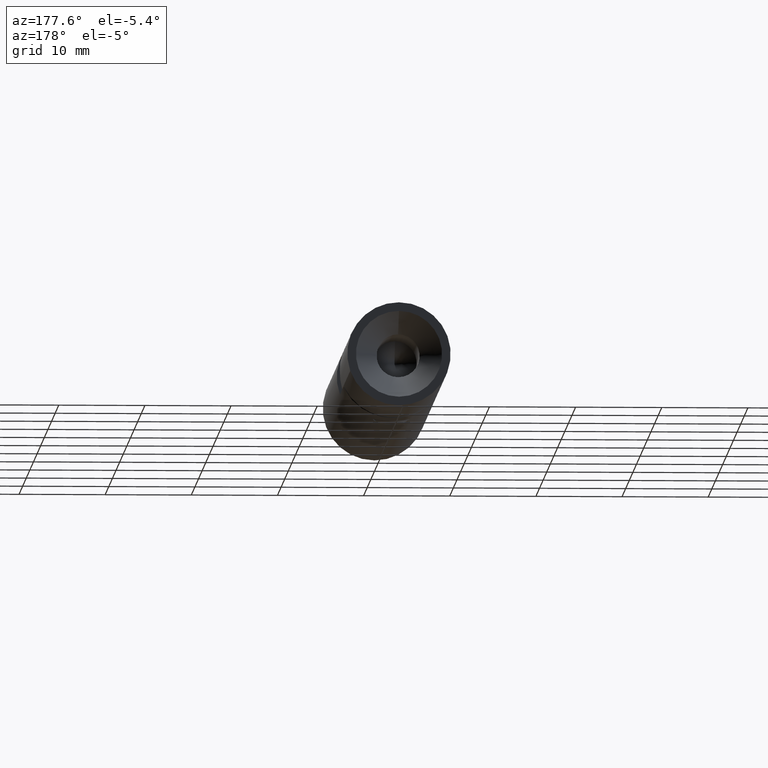
[diagram: clean part render]
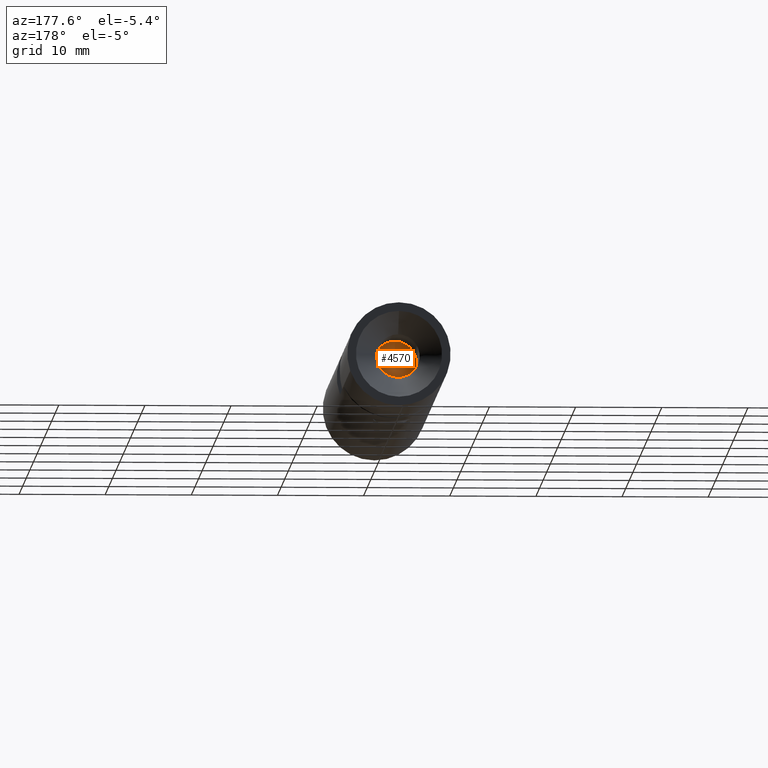
[diagram: same view with one face highlighted and labeled with its STEP entity id]
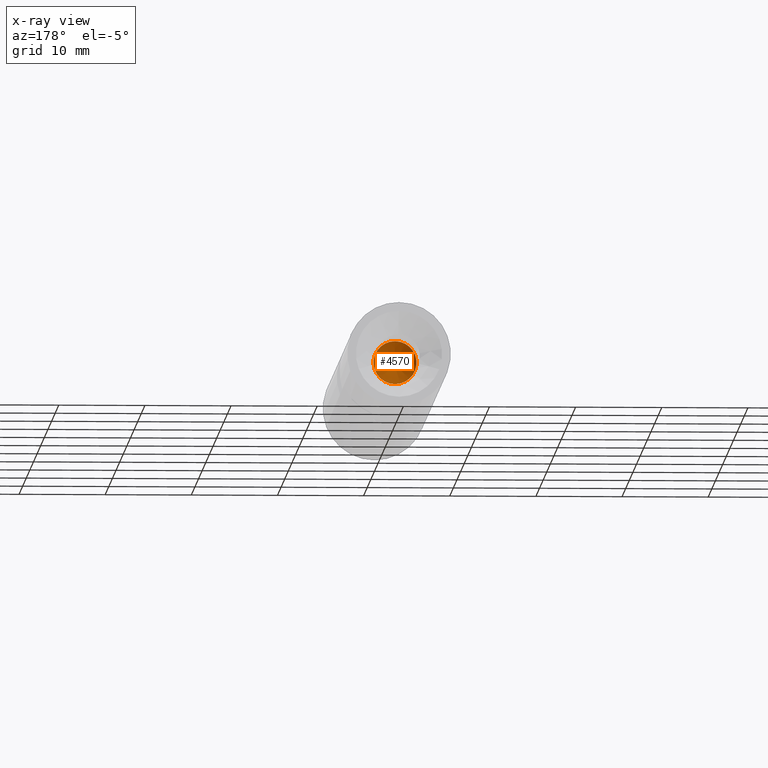
[diagram: x-ray of the same camera — body ghosted, the highlighted face saturated]
A machine part, auxiliary view. The second image highlights one B-rep face of the part: STEP entity #4570.
The next image is the same camera in x-ray: the body ghosted, the highlighted face saturated — about 0% of this face is hidden behind the body in this view.
In plain terms, the highlighted conical surface has half-angle 59 deg.
Its self-contained STEP definition (entity closure, byte-faithful):
#268 = CARTESIAN_POINT ( 'NONE',  ( 0.000000000000000000, 15.50000000000000000, 0.000000000000000000 ) ) ;
#1543 = DIRECTION ( 'NONE',  ( -0.000000000000000000, 1.000000000000000000, -0.000000000000000000 ) ) ;
#2059 = CIRCLE ( 'NONE', #13626, 2.499999999999997335 ) ;
#3040 = AXIS2_PLACEMENT_3D ( 'NONE', #268, #12175, #15002 ) ;
#4570 = ADVANCED_FACE ( 'NONE', ( #14828 ), #17357, .F. ) ;
#7868 = CARTESIAN_POINT ( 'NONE',  ( 0.000000000000000000, 15.50000000000000000, 2.499999999999997335 ) ) ;
#8986 = CARTESIAN_POINT ( 'NONE',  ( 0.000000000000000000, 15.50000000000000000, 0.000000000000000000 ) ) ;
#9120 = DIRECTION ( 'NONE',  ( 0.000000000000000000, 0.000000000000000000, 1.000000000000000000 ) ) ;
#12175 = DIRECTION ( 'NONE',  ( -0.000000000000000000, 1.000000000000000000, -0.000000000000000000 ) ) ;
#12326 = EDGE_LOOP ( 'NONE', ( #13648 ) ) ;
#12908 = VERTEX_POINT ( 'NONE', #7868 ) ;
#13626 = AXIS2_PLACEMENT_3D ( 'NONE', #8986, #1543, #9120 ) ;
#13648 = ORIENTED_EDGE ( 'NONE', *, *, #17327, .T. ) ;
#14828 = FACE_OUTER_BOUND ( 'NONE', #12326, .T. ) ;
#15002 = DIRECTION ( 'NONE',  ( 0.000000000000000000, 0.000000000000000000, 1.000000000000000000 ) ) ;
#17327 = EDGE_CURVE ( 'NONE', #12908, #12908, #2059, .T. ) ;
#17357 = CONICAL_SURFACE ( 'NONE', #3040, 2.499999999999997335, 1.029744258676653645 ) ;